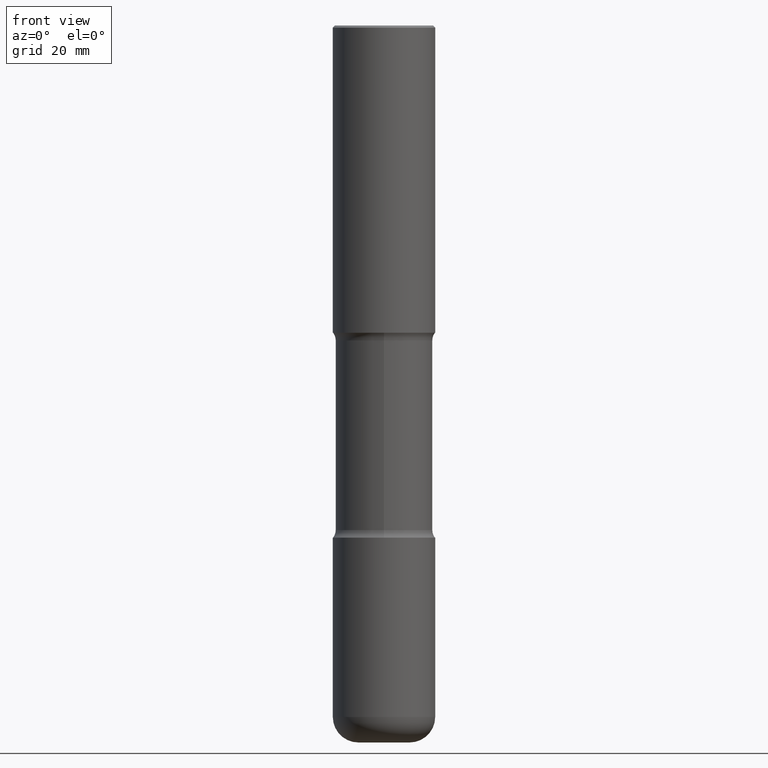
[diagram: clean part render]
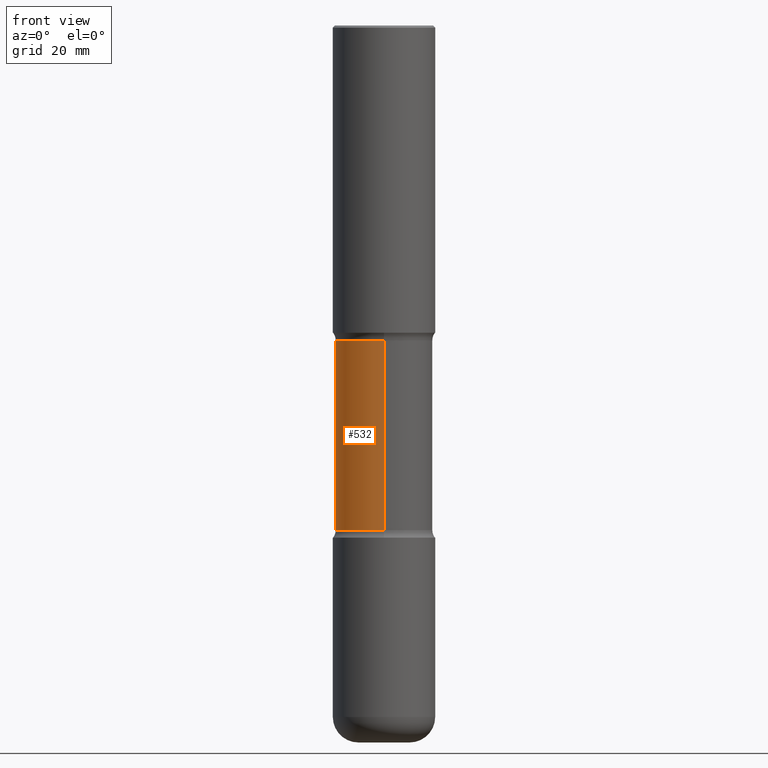
[diagram: same view with one face highlighted and labeled with its STEP entity id]
A machine part, front view. The second image highlights one B-rep face of the part: STEP entity #532.
In plain terms, the highlighted cylindrical surface (partial cylindrical patch) has radius 12.065 mm, axis along (0, -0, -1).
Its self-contained STEP definition (entity closure, byte-faithful):
#3 = CARTESIAN_POINT ( 'NONE',  ( 3.316907271901148659E-15, 0.4749999999999757194, -7.000000000000000000 ) ) ;
#4 = VECTOR ( 'NONE', #78, 39.37007874015748143 ) ;
#26 = EDGE_CURVE ( 'NONE', #538, #551, #248, .T. ) ;
#35 = DIRECTION ( 'NONE',  ( 6.982962677686265922E-15, 1.000000000000000000, -2.300503573612011028E-15 ) ) ;
#78 = DIRECTION ( 'NONE',  ( 2.495638921910708014E-29, -3.419634877618474112E-15, -1.000000000000000000 ) ) ;
#79 = LINE ( 'NONE', #3, #265 ) ;
#91 = CARTESIAN_POINT ( 'NONE',  ( -3.344492773913550718E-15, -0.4750000000000109690, -3.074999999999998401 ) ) ;
#105 = VERTEX_POINT ( 'NONE', #133 ) ;
#133 = CARTESIAN_POINT ( 'NONE',  ( 3.316907271901096594E-15, 0.4749999999999827693, -4.924999999999999822 ) ) ;
#137 = CIRCLE ( 'NONE', #236, 0.4750000000000001443 ) ;
#158 = DIRECTION ( 'NONE',  ( 6.982962677686265133E-15, 1.000000000000000000, -3.450755360418015555E-15 ) ) ;
#232 = ORIENTED_EDGE ( 'NONE', *, *, #349, .F. ) ;
#236 = AXIS2_PLACEMENT_3D ( 'NONE', #371, #422, #158 ) ;
#240 = DIRECTION ( 'NONE',  ( 2.495638921910708014E-29, -3.419634877618474112E-15, -1.000000000000000000 ) ) ;
#241 = EDGE_LOOP ( 'NONE', ( #315, #515, #390, #232 ) ) ;
#248 = LINE ( 'NONE', #460, #4 ) ;
#265 = VECTOR ( 'NONE', #522, 39.37007874015748143 ) ;
#282 = CARTESIAN_POINT ( 'NONE',  ( 3.316907271901051235E-15, 0.4749999999999892641, -3.075000000000001510 ) ) ;
#295 = FACE_OUTER_BOUND ( 'NONE', #241, .T. ) ;
#298 = CARTESIAN_POINT ( 'NONE',  ( 1.721862187474709565E-28, -2.429667644945267101E-14, -6.999999999999998224 ) ) ;
#315 = ORIENTED_EDGE ( 'NONE', *, *, #26, .F. ) ;
#333 = EDGE_CURVE ( 'NONE', #538, #377, #137, .T. ) ;
#349 = EDGE_CURVE ( 'NONE', #551, #105, #378, .T. ) ;
#371 = CARTESIAN_POINT ( 'NONE',  ( 7.423239106247569958E-29, -1.087460955480016368E-14, -3.074999999999999734 ) ) ;
#377 = VERTEX_POINT ( 'NONE', #282 ) ;
#378 = CIRCLE ( 'NONE', #520, 0.4749999999999999778 ) ;
#390 = ORIENTED_EDGE ( 'NONE', *, *, #477, .T. ) ;
#422 = DIRECTION ( 'NONE',  ( 2.495638921910708014E-29, -3.419634877618474112E-15, -1.000000000000000000 ) ) ;
#455 = AXIS2_PLACEMENT_3D ( 'NONE', #298, #470, #35 ) ;
#458 = DIRECTION ( 'NONE',  ( 6.982962677686265133E-15, 1.000000000000000000, -2.300503573612011422E-15 ) ) ;
#460 = CARTESIAN_POINT ( 'NONE',  ( -3.258736548941304889E-15, -0.4750000000000243472, -6.999999999999997335 ) ) ;
#470 = DIRECTION ( 'NONE',  ( 2.495638921910708014E-29, -3.419634877618474112E-15, -1.000000000000000000 ) ) ;
#476 = CYLINDRICAL_SURFACE ( 'NONE', #455, 0.4750000000000000333 ) ;
#477 = EDGE_CURVE ( 'NONE', #377, #105, #79, .T. ) ;
#515 = ORIENTED_EDGE ( 'NONE', *, *, #333, .T. ) ;
#520 = AXIS2_PLACEMENT_3D ( 'NONE', #540, #240, #458 ) ;
#522 = DIRECTION ( 'NONE',  ( 2.495638921910708014E-29, -3.419634877618474112E-15, -1.000000000000000000 ) ) ;
#532 = ADVANCED_FACE ( 'NONE', ( #295 ), #476, .T. ) ;
#538 = VERTEX_POINT ( 'NONE', #91 ) ;
#540 = CARTESIAN_POINT ( 'NONE',  ( 1.204017111178237438E-28, -1.720093407839433761E-14, -4.924999999999998046 ) ) ;
#551 = VERTEX_POINT ( 'NONE', #552 ) ;
#552 = CARTESIAN_POINT ( 'NONE',  ( -3.344492773913500625E-15, -0.4750000000000171863, -4.924999999999997158 ) ) ;